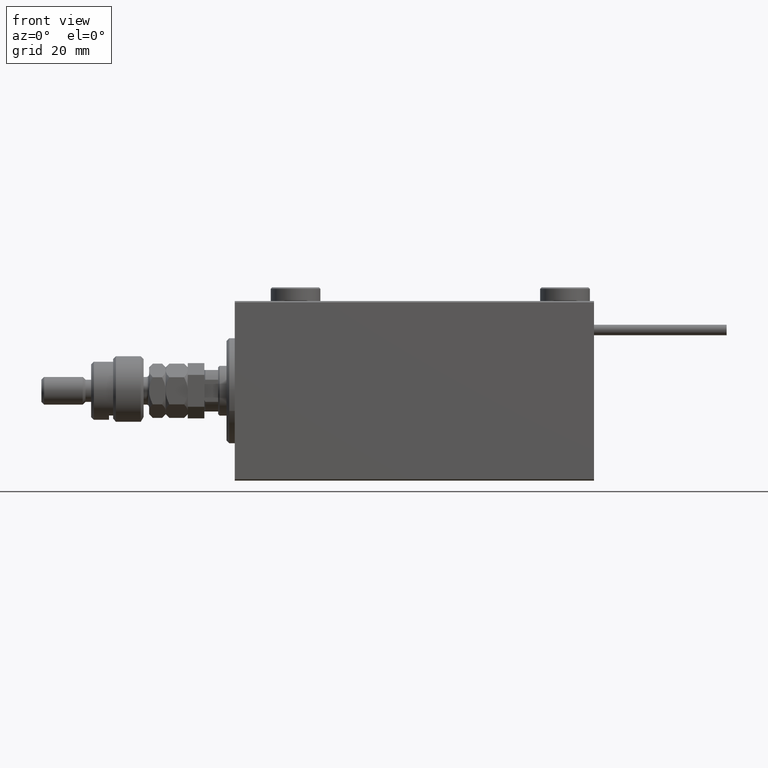
[diagram: clean part render]
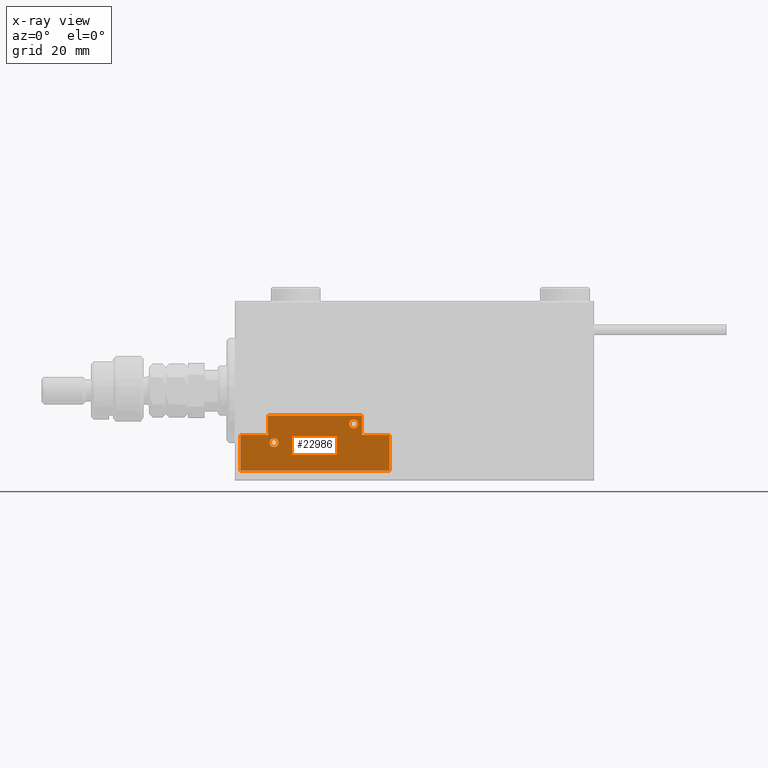
[diagram: x-ray — body ghosted, one internal face saturated and labeled with its STEP entity id]
A machine part, front view, then the same camera in x-ray: the body is ghosted and one INTERNAL B-rep face — a face not visible from any outside direction — is saturated and labeled: STEP entity #22986.
In plain terms, the highlighted planar face has unit normal (-0, 1, -0).
Its self-contained STEP definition (entity closure, byte-faithful):
#214 = CARTESIAN_POINT ( 'NONE',  ( 16.99999999999999289, 3.252606517456513302E-15, 0.000000000000000000 ) ) ;
#295 = EDGE_CURVE ( 'NONE', #23247, #29623, #40011, .T. ) ;
#2190 = VERTEX_POINT ( 'NONE', #24693 ) ;
#2382 = CARTESIAN_POINT ( 'NONE',  ( 12.39999999999999858, 3.000000000000002665, 0.000000000000000000 ) ) ;
#2891 = AXIS2_PLACEMENT_3D ( 'NONE', #16048, #6970, #41312 ) ;
#3446 = DIRECTION ( 'NONE',  ( 1.000000000000000000, -1.734723475976815230E-16, 0.000000000000000000 ) ) ;
#3661 = VERTEX_POINT ( 'NONE', #2382 ) ;
#4503 = CARTESIAN_POINT ( 'NONE',  ( -16.99999999999999289, 3.252606517456513302E-15, 0.000000000000000000 ) ) ;
#4548 = DIRECTION ( 'NONE',  ( 1.000000000000000000, 0.000000000000000000, 0.000000000000000000 ) ) ;
#6179 = ORIENTED_EDGE ( 'NONE', *, *, #13978, .T. ) ;
#6970 = DIRECTION ( 'NONE',  ( 0.000000000000000000, 0.000000000000000000, 1.000000000000000000 ) ) ;
#7916 = VECTOR ( 'NONE', #16820, 1000.000000000000000 ) ;
#8285 = LINE ( 'NONE', #21742, #43408 ) ;
#9243 = CARTESIAN_POINT ( 'NONE',  ( 27.00000000000006395, 20.00000000000001776, 0.000000000000000000 ) ) ;
#9466 = VECTOR ( 'NONE', #51332, 1000.000000000000000 ) ;
#10044 = VERTEX_POINT ( 'NONE', #38778 ) ;
#10977 = EDGE_CURVE ( 'NONE', #15240, #22678, #36823, .T. ) ;
#11857 = CARTESIAN_POINT ( 'NONE',  ( -26.99999999999993605, 20.00000000000002132, 0.000000000000000000 ) ) ;
#12136 = CARTESIAN_POINT ( 'NONE',  ( 17.00000000000000000, 7.000000000000009770, 0.000000000000000000 ) ) ;
#12200 = ORIENTED_EDGE ( 'NONE', *, *, #40225, .T. ) ;
#12303 = VECTOR ( 'NONE', #18017, 1000.000000000000000 ) ;
#13978 = EDGE_CURVE ( 'NONE', #3661, #26729, #29293, .T. ) ;
#14813 = VECTOR ( 'NONE', #3446, 1000.000000000000000 ) ;
#15240 = VERTEX_POINT ( 'NONE', #4503 ) ;
#16048 = CARTESIAN_POINT ( 'NONE',  ( -14.79999999999994920, 9.800000000000004263, 0.000000000000000000 ) ) ;
#16820 = DIRECTION ( 'NONE',  ( 1.000000000000000000, -1.734723475976796001E-16, 0.000000000000000000 ) ) ;
#17285 = CARTESIAN_POINT ( 'NONE',  ( 27.00000000000006395, 20.00000000000001776, 0.000000000000000000 ) ) ;
#17431 = ORIENTED_EDGE ( 'NONE', *, *, #40678, .T. ) ;
#18017 = DIRECTION ( 'NONE',  ( -1.000000000000000000, 6.424901762877062263E-17, 0.000000000000000000 ) ) ;
#18197 = VECTOR ( 'NONE', #53099, 1000.000000000000000 ) ;
#18787 = CARTESIAN_POINT ( 'NONE',  ( -16.99999999999999289, 7.000000000000003553, 0.000000000000000000 ) ) ;
#19100 = CIRCLE ( 'NONE', #34030, 1.600000000000000755 ) ;
#19342 = CARTESIAN_POINT ( 'NONE',  ( -26.99999999999994671, 7.000000000000005329, 0.000000000000000000 ) ) ;
#19512 = EDGE_CURVE ( 'NONE', #2190, #36052, #8285, .T. ) ;
#19984 = VERTEX_POINT ( 'NONE', #52153 ) ;
#20542 = AXIS2_PLACEMENT_3D ( 'NONE', #26443, #51972, #47288 ) ;
#21742 = CARTESIAN_POINT ( 'NONE',  ( 27.00000000000006395, 7.000000000000007994, 0.000000000000000000 ) ) ;
#22678 = VERTEX_POINT ( 'NONE', #214 ) ;
#22986 = ADVANCED_FACE ( 'NONE', ( #24900, #46293, #50152 ), #25169, .F. ) ;
#23247 = VERTEX_POINT ( 'NONE', #19342 ) ;
#23546 = DIRECTION ( 'NONE',  ( 1.000000000000000000, 0.000000000000000000, 0.000000000000000000 ) ) ;
#24233 = ORIENTED_EDGE ( 'NONE', *, *, #45894, .F. ) ;
#24693 = CARTESIAN_POINT ( 'NONE',  ( 27.00000000000006395, 7.000000000000007994, 0.000000000000000000 ) ) ;
#24900 = FACE_BOUND ( 'NONE', #47679, .T. ) ;
#25169 = PLANE ( 'NONE',  #41801 ) ;
#25455 = EDGE_CURVE ( 'NONE', #10044, #44437, #19100, .T. ) ;
#25746 = EDGE_CURVE ( 'NONE', #29623, #15240, #35806, .T. ) ;
#26137 = DIRECTION ( 'NONE',  ( 0.000000000000000000, 1.000000000000000000, 0.000000000000000000 ) ) ;
#26443 = CARTESIAN_POINT ( 'NONE',  ( 13.99999999999999822, 3.000000000000002665, 0.000000000000000000 ) ) ;
#26610 = CIRCLE ( 'NONE', #2891, 1.600000000000000755 ) ;
#26729 = VERTEX_POINT ( 'NONE', #29929 ) ;
#27352 = ORIENTED_EDGE ( 'NONE', *, *, #295, .F. ) ;
#27404 = CARTESIAN_POINT ( 'NONE',  ( 13.99999999999999822, 3.000000000000002665, 0.000000000000000000 ) ) ;
#29293 = CIRCLE ( 'NONE', #20542, 1.600000000000000755 ) ;
#29623 = VERTEX_POINT ( 'NONE', #39075 ) ;
#29929 = CARTESIAN_POINT ( 'NONE',  ( 15.59999999999999964, 3.000000000000002665, 0.000000000000000000 ) ) ;
#31004 = LINE ( 'NONE', #38687, #9466 ) ;
#31652 = LINE ( 'NONE', #48383, #42939 ) ;
#32565 = DIRECTION ( 'NONE',  ( 0.000000000000000000, 0.000000000000000000, 1.000000000000000000 ) ) ;
#33796 = ORIENTED_EDGE ( 'NONE', *, *, #25455, .T. ) ;
#34010 = ORIENTED_EDGE ( 'NONE', *, *, #10977, .F. ) ;
#34030 = AXIS2_PLACEMENT_3D ( 'NONE', #46000, #32565, #49840 ) ;
#34946 = EDGE_CURVE ( 'NONE', #36052, #35660, #49613, .T. ) ;
#35382 = ORIENTED_EDGE ( 'NONE', *, *, #34946, .F. ) ;
#35660 = VERTEX_POINT ( 'NONE', #11857 ) ;
#35806 = LINE ( 'NONE', #18787, #18197 ) ;
#36052 = VERTEX_POINT ( 'NONE', #17285 ) ;
#36548 = CARTESIAN_POINT ( 'NONE',  ( -16.99999999999999289, 3.252606517456513302E-15, 0.000000000000000000 ) ) ;
#36823 = LINE ( 'NONE', #36548, #41432 ) ;
#38687 = CARTESIAN_POINT ( 'NONE',  ( -26.99999999999993605, 20.00000000000002132, 0.000000000000000000 ) ) ;
#38778 = CARTESIAN_POINT ( 'NONE',  ( -16.39999999999994884, 9.800000000000004263, 0.000000000000000000 ) ) ;
#39075 = CARTESIAN_POINT ( 'NONE',  ( -16.99999999999999289, 7.000000000000003553, 0.000000000000000000 ) ) ;
#40011 = LINE ( 'NONE', #52911, #14813 ) ;
#40225 = EDGE_CURVE ( 'NONE', #26729, #3661, #41358, .T. ) ;
#40678 = EDGE_CURVE ( 'NONE', #44437, #10044, #26610, .T. ) ;
#40870 = EDGE_LOOP ( 'NONE', ( #12200, #6179 ) ) ;
#41085 = DIRECTION ( 'NONE',  ( -0.000000000000000000, 0.000000000000000000, 1.000000000000000000 ) ) ;
#41312 = DIRECTION ( 'NONE',  ( 1.000000000000000000, 0.000000000000000000, 0.000000000000000000 ) ) ;
#41358 = CIRCLE ( 'NONE', #46617, 1.600000000000000755 ) ;
#41373 = CARTESIAN_POINT ( 'NONE',  ( 0.000000000000000000, 0.000000000000000000, 0.000000000000000000 ) ) ;
#41376 = EDGE_LOOP ( 'NONE', ( #51667, #24233, #34010, #51627, #27352, #53148, #35382, #42586 ) ) ;
#41432 = VECTOR ( 'NONE', #52772, 1000.000000000000000 ) ;
#41801 = AXIS2_PLACEMENT_3D ( 'NONE', #41373, #41085, #4548 ) ;
#42000 = EDGE_CURVE ( 'NONE', #35660, #23247, #31004, .T. ) ;
#42586 = ORIENTED_EDGE ( 'NONE', *, *, #19512, .F. ) ;
#42939 = VECTOR ( 'NONE', #48650, 1000.000000000000000 ) ;
#43408 = VECTOR ( 'NONE', #26137, 1000.000000000000000 ) ;
#44414 = DIRECTION ( 'NONE',  ( 0.000000000000000000, 0.000000000000000000, 1.000000000000000000 ) ) ;
#44437 = VERTEX_POINT ( 'NONE', #52372 ) ;
#45894 = EDGE_CURVE ( 'NONE', #22678, #19984, #31652, .T. ) ;
#46000 = CARTESIAN_POINT ( 'NONE',  ( -14.79999999999994920, 9.800000000000004263, 0.000000000000000000 ) ) ;
#46293 = FACE_BOUND ( 'NONE', #40870, .T. ) ;
#46617 = AXIS2_PLACEMENT_3D ( 'NONE', #27404, #44414, #23546 ) ;
#46743 = LINE ( 'NONE', #12136, #7916 ) ;
#47288 = DIRECTION ( 'NONE',  ( 1.000000000000000000, 0.000000000000000000, 0.000000000000000000 ) ) ;
#47679 = EDGE_LOOP ( 'NONE', ( #17431, #33796 ) ) ;
#48383 = CARTESIAN_POINT ( 'NONE',  ( 16.99999999999999289, 3.252606517456513302E-15, 0.000000000000000000 ) ) ;
#48650 = DIRECTION ( 'NONE',  ( 9.912705577010318647E-16, 1.000000000000000000, 0.000000000000000000 ) ) ;
#49613 = LINE ( 'NONE', #9243, #12303 ) ;
#49840 = DIRECTION ( 'NONE',  ( 1.000000000000000000, 0.000000000000000000, 0.000000000000000000 ) ) ;
#50152 = FACE_OUTER_BOUND ( 'NONE', #41376, .T. ) ;
#51332 = DIRECTION ( 'NONE',  ( -8.006416042969869188E-16, -1.000000000000000000, 0.000000000000000000 ) ) ;
#51418 = EDGE_CURVE ( 'NONE', #19984, #2190, #46743, .T. ) ;
#51627 = ORIENTED_EDGE ( 'NONE', *, *, #25746, .F. ) ;
#51667 = ORIENTED_EDGE ( 'NONE', *, *, #51418, .F. ) ;
#51972 = DIRECTION ( 'NONE',  ( 0.000000000000000000, 0.000000000000000000, 1.000000000000000000 ) ) ;
#52153 = CARTESIAN_POINT ( 'NONE',  ( 17.00000000000000000, 7.000000000000009770, 0.000000000000000000 ) ) ;
#52372 = CARTESIAN_POINT ( 'NONE',  ( -13.19999999999994778, 9.800000000000004263, 0.000000000000000000 ) ) ;
#52772 = DIRECTION ( 'NONE',  ( 1.000000000000000000, 0.000000000000000000, 0.000000000000000000 ) ) ;
#52911 = CARTESIAN_POINT ( 'NONE',  ( -26.99999999999994671, 7.000000000000005329, 0.000000000000000000 ) ) ;
#53099 = DIRECTION ( 'NONE',  ( 0.000000000000000000, -1.000000000000000000, 0.000000000000000000 ) ) ;
#53148 = ORIENTED_EDGE ( 'NONE', *, *, #42000, .F. ) ;